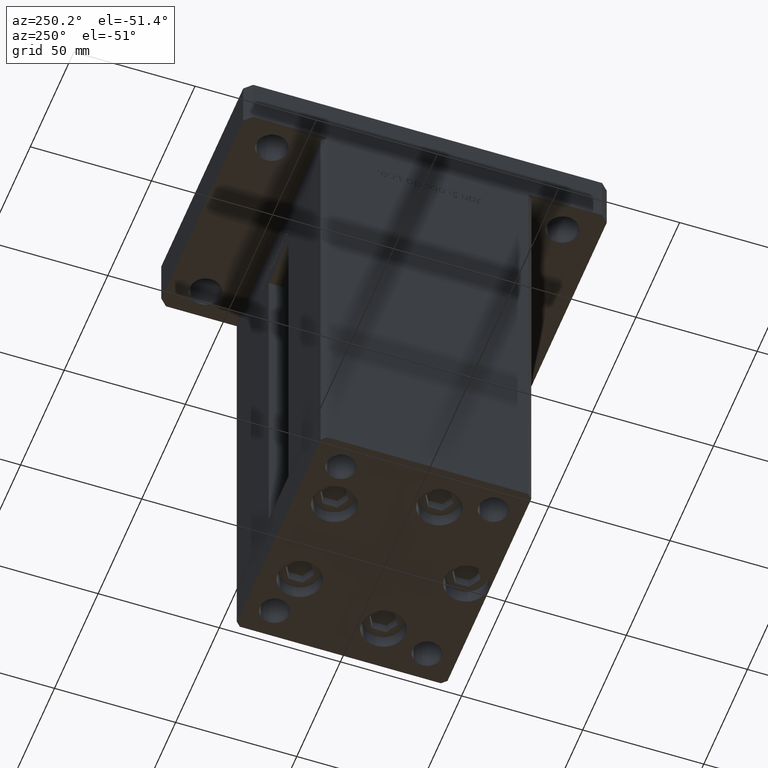
[diagram: clean part render]
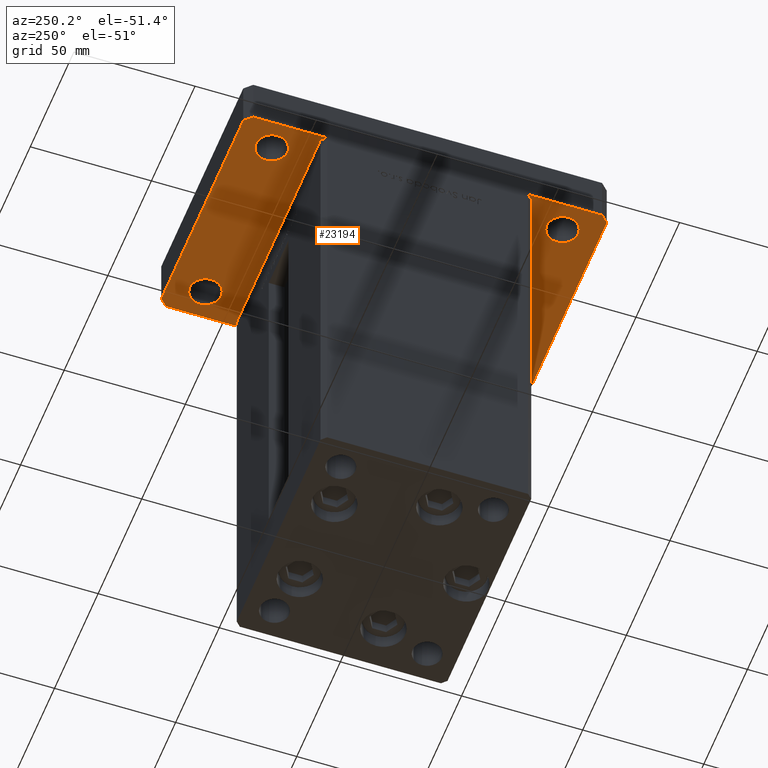
[diagram: same view with one face highlighted and labeled with its STEP entity id]
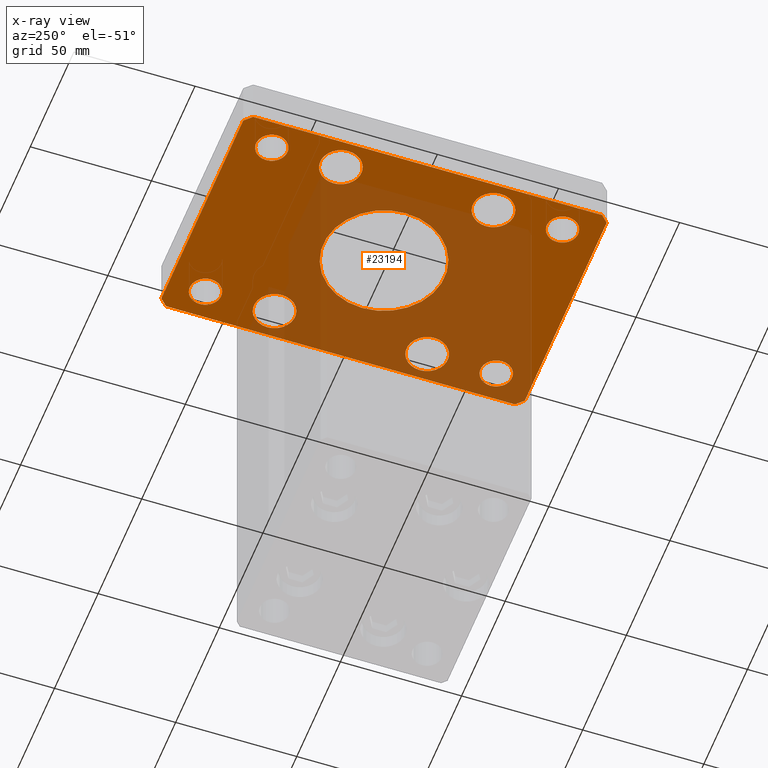
[diagram: x-ray of the same camera — body ghosted, the highlighted face saturated]
A machine part, auxiliary view. The second image highlights one B-rep face of the part: STEP entity #23194.
The next image is the same camera in x-ray: the body ghosted, the highlighted face saturated — about 49% of this face is hidden behind the body in this view.
In plain terms, the highlighted planar face has unit normal (0, 0, 1).
Its self-contained STEP definition (entity closure, byte-faithful):
#69 = VERTEX_POINT ( 'NONE', #44637 ) ;
#207 = VERTEX_POINT ( 'NONE', #49531 ) ;
#216 = ORIENTED_EDGE ( 'NONE', *, *, #37600, .F. ) ;
#894 = CARTESIAN_POINT ( 'NONE',  ( -47.00000000000002842, 75.00000000000000000, 0.000000000000000000 ) ) ;
#1607 = VERTEX_POINT ( 'NONE', #33563 ) ;
#1618 = EDGE_CURVE ( 'NONE', #69, #16931, #7858, .T. ) ;
#1960 = EDGE_CURVE ( 'NONE', #48480, #21095, #31365, .T. ) ;
#2137 = EDGE_CURVE ( 'NONE', #35781, #207, #20932, .T. ) ;
#2217 = CIRCLE ( 'NONE', #10931, 6.499999999999999112 ) ;
#2531 = DIRECTION ( 'NONE',  ( 1.000000000000000000, 0.000000000000000000, 0.000000000000000000 ) ) ;
#2694 = LINE ( 'NONE', #26715, #9846 ) ;
#2818 = EDGE_CURVE ( 'NONE', #21095, #48480, #13982, .T. ) ;
#3191 = VERTEX_POINT ( 'NONE', #26640 ) ;
#3528 = ORIENTED_EDGE ( 'NONE', *, *, #18584, .F. ) ;
#3663 = CIRCLE ( 'NONE', #14103, 6.499999999999999112 ) ;
#3698 = VERTEX_POINT ( 'NONE', #52335 ) ;
#3815 = ORIENTED_EDGE ( 'NONE', *, *, #34582, .T. ) ;
#3997 = EDGE_CURVE ( 'NONE', #1607, #5403, #6184, .T. ) ;
#4500 = CARTESIAN_POINT ( 'NONE',  ( -38.00000000000000711, 31.50000000000000000, 0.000000000000000000 ) ) ;
#4630 = CARTESIAN_POINT ( 'NONE',  ( -37.99999999999997868, -60.00000000000000711, 0.000000000000000000 ) ) ;
#4909 = DIRECTION ( 'NONE',  ( 1.000000000000000000, 0.000000000000000000, 0.000000000000000000 ) ) ;
#4952 = FACE_BOUND ( 'NONE', #24270, .T. ) ;
#4976 = EDGE_CURVE ( 'NONE', #7821, #51333, #35801, .T. ) ;
#5218 = FACE_BOUND ( 'NONE', #23606, .T. ) ;
#5256 = VERTEX_POINT ( 'NONE', #27904 ) ;
#5403 = VERTEX_POINT ( 'NONE', #894 ) ;
#5407 = CIRCLE ( 'NONE', #19360, 8.500000000000000000 ) ;
#5427 = DIRECTION ( 'NONE',  ( 0.000000000000000000, 0.000000000000000000, -1.000000000000000000 ) ) ;
#5494 = PLANE ( 'NONE',  #33695 ) ;
#5691 = VERTEX_POINT ( 'NONE', #22374 ) ;
#5764 = FACE_BOUND ( 'NONE', #34476, .T. ) ;
#5978 = DIRECTION ( 'NONE',  ( 0.7071067811865459074, 0.7071067811865491270, 0.000000000000000000 ) ) ;
#6043 = ORIENTED_EDGE ( 'NONE', *, *, #2137, .T. ) ;
#6068 = DIRECTION ( 'NONE',  ( -0.7071067811865426878, 0.7071067811865524577, 0.000000000000000000 ) ) ;
#6184 = LINE ( 'NONE', #43538, #23586 ) ;
#6322 = DIRECTION ( 'NONE',  ( 1.000000000000000000, 0.000000000000000000, 0.000000000000000000 ) ) ;
#6499 = DIRECTION ( 'NONE',  ( -1.000000000000000000, 0.000000000000000000, 0.000000000000000000 ) ) ;
#7268 = EDGE_CURVE ( 'NONE', #3698, #44968, #3663, .T. ) ;
#7488 = ORIENTED_EDGE ( 'NONE', *, *, #20043, .F. ) ;
#7821 = VERTEX_POINT ( 'NONE', #35813 ) ;
#7858 = CIRCLE ( 'NONE', #21813, 6.499999999999999112 ) ;
#7948 = CARTESIAN_POINT ( 'NONE',  ( 50.00000000000000000, -71.99999999999988631, 0.000000000000000000 ) ) ;
#8123 = AXIS2_PLACEMENT_3D ( 'NONE', #40004, #52567, #53090 ) ;
#9573 = CARTESIAN_POINT ( 'NONE',  ( -37.99999999999999289, 59.99999999999999289, 0.000000000000000000 ) ) ;
#9593 = FACE_OUTER_BOUND ( 'NONE', #29962, .T. ) ;
#9846 = VECTOR ( 'NONE', #5978, 1000.000000000000114 ) ;
#9863 = VERTEX_POINT ( 'NONE', #15976 ) ;
#10026 = DIRECTION ( 'NONE',  ( 1.000000000000000000, 1.181088324069315250E-15, 0.000000000000000000 ) ) ;
#10071 = ORIENTED_EDGE ( 'NONE', *, *, #46379, .T. ) ;
#10171 = ORIENTED_EDGE ( 'NONE', *, *, #2818, .F. ) ;
#10542 = CARTESIAN_POINT ( 'NONE',  ( -37.99999999999999289, 59.99999999999999289, 0.000000000000000000 ) ) ;
#10599 = CARTESIAN_POINT ( 'NONE',  ( 0.000000000000000000, 0.000000000000000000, 0.000000000000000000 ) ) ;
#10931 = AXIS2_PLACEMENT_3D ( 'NONE', #34711, #48347, #2531 ) ;
#11141 = DIRECTION ( 'NONE',  ( 0.000000000000000000, 0.000000000000000000, 1.000000000000000000 ) ) ;
#11465 = CARTESIAN_POINT ( 'NONE',  ( 37.99999999999999289, 31.49999999999999289, 0.000000000000000000 ) ) ;
#11827 = EDGE_CURVE ( 'NONE', #47755, #36846, #5407, .T. ) ;
#12777 = EDGE_LOOP ( 'NONE', ( #46391, #15653 ) ) ;
#13917 = CARTESIAN_POINT ( 'NONE',  ( -47.00000000000002842, 75.00000000000000000, 0.000000000000000000 ) ) ;
#13982 = CIRCLE ( 'NONE', #25302, 25.00000000000000000 ) ;
#14103 = AXIS2_PLACEMENT_3D ( 'NONE', #20429, #11141, #30850 ) ;
#14411 = VERTEX_POINT ( 'NONE', #33264 ) ;
#15285 = EDGE_CURVE ( 'NONE', #24868, #5256, #2694, .T. ) ;
#15381 = CARTESIAN_POINT ( 'NONE',  ( -31.49999999999997868, -60.00000000000000711, 0.000000000000000000 ) ) ;
#15546 = DIRECTION ( 'NONE',  ( 0.000000000000000000, 0.000000000000000000, 1.000000000000000000 ) ) ;
#15653 = ORIENTED_EDGE ( 'NONE', *, *, #42175, .T. ) ;
#15827 = AXIS2_PLACEMENT_3D ( 'NONE', #10542, #47366, #38894 ) ;
#15888 = VERTEX_POINT ( 'NONE', #15381 ) ;
#15976 = CARTESIAN_POINT ( 'NONE',  ( 50.00000000000000000, 72.00000000000001421, 0.000000000000000000 ) ) ;
#16341 = CARTESIAN_POINT ( 'NONE',  ( 31.49999999999997868, -60.00000000000000711, 0.000000000000000000 ) ) ;
#16577 = VECTOR ( 'NONE', #44232, 1000.000000000000114 ) ;
#16931 = VERTEX_POINT ( 'NONE', #43421 ) ;
#17145 = ORIENTED_EDGE ( 'NONE', *, *, #25855, .F. ) ;
#17502 = FACE_BOUND ( 'NONE', #19810, .T. ) ;
#17562 = DIRECTION ( 'NONE',  ( 1.000000000000000000, 0.000000000000000000, 0.000000000000000000 ) ) ;
#17809 = CARTESIAN_POINT ( 'NONE',  ( 50.00000000000000000, 72.00000000000001421, 0.000000000000000000 ) ) ;
#17935 = LINE ( 'NONE', #38913, #23048 ) ;
#18042 = FACE_BOUND ( 'NONE', #33697, .T. ) ;
#18552 = DIRECTION ( 'NONE',  ( 0.000000000000000000, 0.000000000000000000, 1.000000000000000000 ) ) ;
#18584 = EDGE_CURVE ( 'NONE', #29153, #24868, #17935, .T. ) ;
#18848 = VECTOR ( 'NONE', #49027, 1000.000000000000000 ) ;
#19256 = EDGE_CURVE ( 'NONE', #43267, #45953, #38747, .T. ) ;
#19360 = AXIS2_PLACEMENT_3D ( 'NONE', #39472, #35371, #27712 ) ;
#19810 = EDGE_LOOP ( 'NONE', ( #23138, #3815 ) ) ;
#19827 = CARTESIAN_POINT ( 'NONE',  ( 25.00000000000000000, 3.061616997868383043E-15, 0.000000000000000000 ) ) ;
#20043 = EDGE_CURVE ( 'NONE', #9863, #1607, #42893, .T. ) ;
#20247 = LINE ( 'NONE', #7948, #39851 ) ;
#20429 = CARTESIAN_POINT ( 'NONE',  ( 37.99999999999997868, -60.00000000000000711, 0.000000000000000000 ) ) ;
#20580 = ORIENTED_EDGE ( 'NONE', *, *, #19256, .T. ) ;
#20932 = CIRCLE ( 'NONE', #52296, 6.499999999999999112 ) ;
#21095 = VERTEX_POINT ( 'NONE', #45934 ) ;
#21158 = EDGE_CURVE ( 'NONE', #207, #35781, #2217, .T. ) ;
#21389 = ORIENTED_EDGE ( 'NONE', *, *, #38571, .F. ) ;
#21540 = CARTESIAN_POINT ( 'NONE',  ( 29.49999999999999645, 31.49999999999999289, 0.000000000000000000 ) ) ;
#21608 = DIRECTION ( 'NONE',  ( 1.000000000000000000, 0.000000000000000000, -0.000000000000000000 ) ) ;
#21813 = AXIS2_PLACEMENT_3D ( 'NONE', #9573, #42833, #38734 ) ;
#21927 = DIRECTION ( 'NONE',  ( 0.000000000000000000, 0.000000000000000000, 1.000000000000000000 ) ) ;
#22148 = CARTESIAN_POINT ( 'NONE',  ( 0.000000000000000000, 0.000000000000000000, 0.000000000000000000 ) ) ;
#22374 = CARTESIAN_POINT ( 'NONE',  ( -44.49999999999997868, -60.00000000000000711, 0.000000000000000000 ) ) ;
#22420 = FACE_BOUND ( 'NONE', #24727, .T. ) ;
#23048 = VECTOR ( 'NONE', #10026, 1000.000000000000000 ) ;
#23138 = ORIENTED_EDGE ( 'NONE', *, *, #41210, .T. ) ;
#23179 = DIRECTION ( 'NONE',  ( 1.000000000000000000, 0.000000000000000000, 0.000000000000000000 ) ) ;
#23194 = ADVANCED_FACE ( 'NONE', ( #5764, #9593, #17502, #18042, #22420, #50776, #50503, #26223, #4952, #5218 ), #5494, .F. ) ;
#23586 = VECTOR ( 'NONE', #26905, 1000.000000000000000 ) ;
#23606 = EDGE_LOOP ( 'NONE', ( #27482, #43303 ) ) ;
#23669 = DIRECTION ( 'NONE',  ( -1.000000000000000000, 0.000000000000000000, 0.000000000000000000 ) ) ;
#23778 = LINE ( 'NONE', #40413, #16577 ) ;
#24270 = EDGE_LOOP ( 'NONE', ( #34379, #36171 ) ) ;
#24421 = DIRECTION ( 'NONE',  ( 1.000000000000000000, 0.000000000000000000, 0.000000000000000000 ) ) ;
#24476 = CARTESIAN_POINT ( 'NONE',  ( -50.00000000000001421, 72.00000000000000000, 0.000000000000000000 ) ) ;
#24727 = EDGE_LOOP ( 'NONE', ( #31871, #10071 ) ) ;
#24868 = VERTEX_POINT ( 'NONE', #48948 ) ;
#24968 = DIRECTION ( 'NONE',  ( 1.000000000000000000, 0.000000000000000000, 0.000000000000000000 ) ) ;
#25250 = AXIS2_PLACEMENT_3D ( 'NONE', #4630, #28911, #42257 ) ;
#25302 = AXIS2_PLACEMENT_3D ( 'NONE', #26151, #5427, #23669 ) ;
#25313 = CARTESIAN_POINT ( 'NONE',  ( 44.50000000000000000, 59.99999999999998579, 0.000000000000000000 ) ) ;
#25444 = EDGE_CURVE ( 'NONE', #45953, #43267, #51031, .T. ) ;
#25855 = EDGE_CURVE ( 'NONE', #3191, #36581, #45478, .T. ) ;
#25930 = ORIENTED_EDGE ( 'NONE', *, *, #21158, .T. ) ;
#26151 = CARTESIAN_POINT ( 'NONE',  ( 0.000000000000000000, 0.000000000000000000, 0.000000000000000000 ) ) ;
#26223 = FACE_BOUND ( 'NONE', #32701, .T. ) ;
#26576 = CARTESIAN_POINT ( 'NONE',  ( -47.00000000000000000, -75.00000000000000000, 0.000000000000000000 ) ) ;
#26640 = CARTESIAN_POINT ( 'NONE',  ( -50.00000000000001421, 72.00000000000000000, 0.000000000000000000 ) ) ;
#26715 = CARTESIAN_POINT ( 'NONE',  ( 47.00000000000001421, -74.99999999999988631, 0.000000000000000000 ) ) ;
#26817 = CARTESIAN_POINT ( 'NONE',  ( 38.00000000000000000, 59.99999999999998579, 0.000000000000000000 ) ) ;
#26905 = DIRECTION ( 'NONE',  ( -1.000000000000000000, -2.952720810173287140E-16, 0.000000000000000000 ) ) ;
#27217 = DIRECTION ( 'NONE',  ( 0.000000000000000000, 0.000000000000000000, -1.000000000000000000 ) ) ;
#27482 = ORIENTED_EDGE ( 'NONE', *, *, #49421, .T. ) ;
#27509 = AXIS2_PLACEMENT_3D ( 'NONE', #11465, #15546, #36528 ) ;
#27712 = DIRECTION ( 'NONE',  ( 1.000000000000000000, 0.000000000000000000, 0.000000000000000000 ) ) ;
#27759 = DIRECTION ( 'NONE',  ( 0.000000000000000000, 0.000000000000000000, 1.000000000000000000 ) ) ;
#27904 = CARTESIAN_POINT ( 'NONE',  ( 50.00000000000000000, -71.99999999999988631, 0.000000000000000000 ) ) ;
#28274 = EDGE_LOOP ( 'NONE', ( #44075, #50643 ) ) ;
#28714 = CIRCLE ( 'NONE', #38282, 8.499999999999992895 ) ;
#28753 = CIRCLE ( 'NONE', #35718, 8.500000000000000000 ) ;
#28863 = ORIENTED_EDGE ( 'NONE', *, *, #15285, .F. ) ;
#28911 = DIRECTION ( 'NONE',  ( 0.000000000000000000, 0.000000000000000000, 1.000000000000000000 ) ) ;
#29153 = VERTEX_POINT ( 'NONE', #26576 ) ;
#29962 = EDGE_LOOP ( 'NONE', ( #3528, #21389, #17145, #216, #42850, #7488, #50458, #28863 ) ) ;
#30094 = CARTESIAN_POINT ( 'NONE',  ( -38.00000000000000711, 31.50000000000000000, 0.000000000000000000 ) ) ;
#30850 = DIRECTION ( 'NONE',  ( 1.000000000000000000, 0.000000000000000000, 0.000000000000000000 ) ) ;
#30919 = EDGE_CURVE ( 'NONE', #5256, #9863, #20247, .T. ) ;
#31365 = CIRCLE ( 'NONE', #45318, 25.00000000000000000 ) ;
#31464 = CIRCLE ( 'NONE', #41054, 8.500000000000000000 ) ;
#31871 = ORIENTED_EDGE ( 'NONE', *, *, #1618, .T. ) ;
#32701 = EDGE_LOOP ( 'NONE', ( #50269, #20580 ) ) ;
#33264 = CARTESIAN_POINT ( 'NONE',  ( 29.49999999999999645, -31.49999999999999289, 0.000000000000000000 ) ) ;
#33563 = CARTESIAN_POINT ( 'NONE',  ( 47.00000000000002842, 75.00000000000002842, 0.000000000000000000 ) ) ;
#33695 = AXIS2_PLACEMENT_3D ( 'NONE', #22148, #42857, #21608 ) ;
#33697 = EDGE_LOOP ( 'NONE', ( #25930, #6043 ) ) ;
#33875 = AXIS2_PLACEMENT_3D ( 'NONE', #40650, #52927, #6322 ) ;
#34153 = DIRECTION ( 'NONE',  ( 0.000000000000000000, 0.000000000000000000, 1.000000000000000000 ) ) ;
#34379 = ORIENTED_EDGE ( 'NONE', *, *, #4976, .T. ) ;
#34415 = CARTESIAN_POINT ( 'NONE',  ( -46.50000000000000711, -31.50000000000000000, 0.000000000000000000 ) ) ;
#34476 = EDGE_LOOP ( 'NONE', ( #10171, #39340 ) ) ;
#34582 = EDGE_CURVE ( 'NONE', #15888, #5691, #52200, .T. ) ;
#34711 = CARTESIAN_POINT ( 'NONE',  ( 38.00000000000000000, 59.99999999999998579, 0.000000000000000000 ) ) ;
#35371 = DIRECTION ( 'NONE',  ( 0.000000000000000000, 0.000000000000000000, 1.000000000000000000 ) ) ;
#35564 = EDGE_CURVE ( 'NONE', #14411, #40548, #28714, .T. ) ;
#35718 = AXIS2_PLACEMENT_3D ( 'NONE', #44136, #27759, #24421 ) ;
#35781 = VERTEX_POINT ( 'NONE', #25313 ) ;
#35801 = CIRCLE ( 'NONE', #49765, 8.500000000000000000 ) ;
#35813 = CARTESIAN_POINT ( 'NONE',  ( -46.50000000000000711, 31.50000000000000000, 0.000000000000000000 ) ) ;
#36171 = ORIENTED_EDGE ( 'NONE', *, *, #43731, .T. ) ;
#36528 = DIRECTION ( 'NONE',  ( 1.000000000000000000, 0.000000000000000000, 0.000000000000000000 ) ) ;
#36581 = VERTEX_POINT ( 'NONE', #44497 ) ;
#36638 = EDGE_CURVE ( 'NONE', #36846, #47755, #28753, .T. ) ;
#36846 = VERTEX_POINT ( 'NONE', #52080 ) ;
#36850 = DIRECTION ( 'NONE',  ( 0.000000000000000000, 1.000000000000000000, 0.000000000000000000 ) ) ;
#37215 = CARTESIAN_POINT ( 'NONE',  ( 46.49999999999998579, -31.49999999999999289, 0.000000000000000000 ) ) ;
#37600 = EDGE_CURVE ( 'NONE', #5403, #3191, #46383, .T. ) ;
#38282 = AXIS2_PLACEMENT_3D ( 'NONE', #51555, #18552, #4909 ) ;
#38326 = AXIS2_PLACEMENT_3D ( 'NONE', #40295, #53104, #49284 ) ;
#38571 = EDGE_CURVE ( 'NONE', #36581, #29153, #23778, .T. ) ;
#38734 = DIRECTION ( 'NONE',  ( 1.000000000000000000, 0.000000000000000000, 0.000000000000000000 ) ) ;
#38747 = CIRCLE ( 'NONE', #43121, 8.499999999999992895 ) ;
#38894 = DIRECTION ( 'NONE',  ( 1.000000000000000000, 0.000000000000000000, 0.000000000000000000 ) ) ;
#38913 = CARTESIAN_POINT ( 'NONE',  ( -47.00000000000000000, -75.00000000000000000, 0.000000000000000000 ) ) ;
#39228 = VECTOR ( 'NONE', #42538, 1000.000000000000114 ) ;
#39340 = ORIENTED_EDGE ( 'NONE', *, *, #1960, .F. ) ;
#39342 = CIRCLE ( 'NONE', #15827, 6.499999999999999112 ) ;
#39366 = DIRECTION ( 'NONE',  ( 0.000000000000000000, 0.000000000000000000, 1.000000000000000000 ) ) ;
#39472 = CARTESIAN_POINT ( 'NONE',  ( -38.00000000000000711, -31.50000000000000000, 0.000000000000000000 ) ) ;
#39851 = VECTOR ( 'NONE', #36850, 1000.000000000000000 ) ;
#40004 = CARTESIAN_POINT ( 'NONE',  ( 37.99999999999997868, -60.00000000000000711, 0.000000000000000000 ) ) ;
#40295 = CARTESIAN_POINT ( 'NONE',  ( 37.99999999999999289, -31.49999999999999289, 0.000000000000000000 ) ) ;
#40413 = CARTESIAN_POINT ( 'NONE',  ( -49.99999999999998579, -72.00000000000001421, 0.000000000000000000 ) ) ;
#40548 = VERTEX_POINT ( 'NONE', #37215 ) ;
#40615 = CARTESIAN_POINT ( 'NONE',  ( 46.49999999999998579, 31.49999999999999289, 0.000000000000000000 ) ) ;
#40650 = CARTESIAN_POINT ( 'NONE',  ( -37.99999999999997868, -60.00000000000000711, 0.000000000000000000 ) ) ;
#41054 = AXIS2_PLACEMENT_3D ( 'NONE', #30094, #21927, #47540 ) ;
#41209 = CIRCLE ( 'NONE', #8123, 6.499999999999999112 ) ;
#41210 = EDGE_CURVE ( 'NONE', #5691, #15888, #48755, .T. ) ;
#42175 = EDGE_CURVE ( 'NONE', #40548, #14411, #47951, .T. ) ;
#42257 = DIRECTION ( 'NONE',  ( 1.000000000000000000, 0.000000000000000000, 0.000000000000000000 ) ) ;
#42341 = CARTESIAN_POINT ( 'NONE',  ( 37.99999999999999289, 31.49999999999999289, 0.000000000000000000 ) ) ;
#42538 = DIRECTION ( 'NONE',  ( -0.7071067811865459074, -0.7071067811865491270, 0.000000000000000000 ) ) ;
#42833 = DIRECTION ( 'NONE',  ( 0.000000000000000000, 0.000000000000000000, 1.000000000000000000 ) ) ;
#42850 = ORIENTED_EDGE ( 'NONE', *, *, #3997, .F. ) ;
#42857 = DIRECTION ( 'NONE',  ( 0.000000000000000000, 0.000000000000000000, 1.000000000000000000 ) ) ;
#42893 = LINE ( 'NONE', #17809, #53567 ) ;
#43121 = AXIS2_PLACEMENT_3D ( 'NONE', #42341, #34153, #23179 ) ;
#43267 = VERTEX_POINT ( 'NONE', #40615 ) ;
#43303 = ORIENTED_EDGE ( 'NONE', *, *, #7268, .T. ) ;
#43421 = CARTESIAN_POINT ( 'NONE',  ( -31.49999999999999289, 59.99999999999999289, 0.000000000000000000 ) ) ;
#43538 = CARTESIAN_POINT ( 'NONE',  ( 47.00000000000002842, 75.00000000000002842, 0.000000000000000000 ) ) ;
#43731 = EDGE_CURVE ( 'NONE', #51333, #7821, #31464, .T. ) ;
#44075 = ORIENTED_EDGE ( 'NONE', *, *, #11827, .T. ) ;
#44136 = CARTESIAN_POINT ( 'NONE',  ( -38.00000000000000711, -31.50000000000000000, 0.000000000000000000 ) ) ;
#44232 = DIRECTION ( 'NONE',  ( 0.7071067811865474617, -0.7071067811865474617, 0.000000000000000000 ) ) ;
#44497 = CARTESIAN_POINT ( 'NONE',  ( -49.99999999999998579, -72.00000000000001421, 0.000000000000000000 ) ) ;
#44637 = CARTESIAN_POINT ( 'NONE',  ( -44.49999999999999289, 59.99999999999999289, 0.000000000000000000 ) ) ;
#44968 = VERTEX_POINT ( 'NONE', #16341 ) ;
#45318 = AXIS2_PLACEMENT_3D ( 'NONE', #10599, #27217, #6499 ) ;
#45478 = LINE ( 'NONE', #24476, #18848 ) ;
#45934 = CARTESIAN_POINT ( 'NONE',  ( -25.00000000000000000, 0.000000000000000000, 0.000000000000000000 ) ) ;
#45953 = VERTEX_POINT ( 'NONE', #21540 ) ;
#46379 = EDGE_CURVE ( 'NONE', #16931, #69, #39342, .T. ) ;
#46383 = LINE ( 'NONE', #13917, #39228 ) ;
#46391 = ORIENTED_EDGE ( 'NONE', *, *, #35564, .T. ) ;
#47366 = DIRECTION ( 'NONE',  ( 0.000000000000000000, 0.000000000000000000, 1.000000000000000000 ) ) ;
#47540 = DIRECTION ( 'NONE',  ( 1.000000000000000000, 0.000000000000000000, 0.000000000000000000 ) ) ;
#47755 = VERTEX_POINT ( 'NONE', #34415 ) ;
#47951 = CIRCLE ( 'NONE', #38326, 8.499999999999992895 ) ;
#48347 = DIRECTION ( 'NONE',  ( 0.000000000000000000, 0.000000000000000000, 1.000000000000000000 ) ) ;
#48480 = VERTEX_POINT ( 'NONE', #19827 ) ;
#48755 = CIRCLE ( 'NONE', #25250, 6.499999999999999112 ) ;
#48948 = CARTESIAN_POINT ( 'NONE',  ( 47.00000000000001421, -74.99999999999988631, 0.000000000000000000 ) ) ;
#49027 = DIRECTION ( 'NONE',  ( 1.927470528863118802E-16, -1.000000000000000000, 0.000000000000000000 ) ) ;
#49046 = CARTESIAN_POINT ( 'NONE',  ( -29.50000000000000711, 31.50000000000000000, 0.000000000000000000 ) ) ;
#49284 = DIRECTION ( 'NONE',  ( 1.000000000000000000, 0.000000000000000000, 0.000000000000000000 ) ) ;
#49421 = EDGE_CURVE ( 'NONE', #44968, #3698, #41209, .T. ) ;
#49531 = CARTESIAN_POINT ( 'NONE',  ( 31.50000000000000000, 59.99999999999998579, 0.000000000000000000 ) ) ;
#49765 = AXIS2_PLACEMENT_3D ( 'NONE', #4500, #53877, #24968 ) ;
#50269 = ORIENTED_EDGE ( 'NONE', *, *, #25444, .T. ) ;
#50458 = ORIENTED_EDGE ( 'NONE', *, *, #30919, .F. ) ;
#50503 = FACE_BOUND ( 'NONE', #12777, .T. ) ;
#50643 = ORIENTED_EDGE ( 'NONE', *, *, #36638, .T. ) ;
#50776 = FACE_BOUND ( 'NONE', #28274, .T. ) ;
#51031 = CIRCLE ( 'NONE', #27509, 8.499999999999992895 ) ;
#51333 = VERTEX_POINT ( 'NONE', #49046 ) ;
#51555 = CARTESIAN_POINT ( 'NONE',  ( 37.99999999999999289, -31.49999999999999289, 0.000000000000000000 ) ) ;
#52080 = CARTESIAN_POINT ( 'NONE',  ( -29.50000000000000711, -31.50000000000000000, 0.000000000000000000 ) ) ;
#52200 = CIRCLE ( 'NONE', #33875, 6.499999999999999112 ) ;
#52296 = AXIS2_PLACEMENT_3D ( 'NONE', #26817, #39366, #17562 ) ;
#52335 = CARTESIAN_POINT ( 'NONE',  ( 44.49999999999997868, -60.00000000000000711, 0.000000000000000000 ) ) ;
#52567 = DIRECTION ( 'NONE',  ( 0.000000000000000000, 0.000000000000000000, 1.000000000000000000 ) ) ;
#52927 = DIRECTION ( 'NONE',  ( 0.000000000000000000, 0.000000000000000000, 1.000000000000000000 ) ) ;
#53090 = DIRECTION ( 'NONE',  ( 1.000000000000000000, 0.000000000000000000, 0.000000000000000000 ) ) ;
#53104 = DIRECTION ( 'NONE',  ( 0.000000000000000000, 0.000000000000000000, 1.000000000000000000 ) ) ;
#53567 = VECTOR ( 'NONE', #6068, 1000.000000000000000 ) ;
#53877 = DIRECTION ( 'NONE',  ( 0.000000000000000000, 0.000000000000000000, 1.000000000000000000 ) ) ;